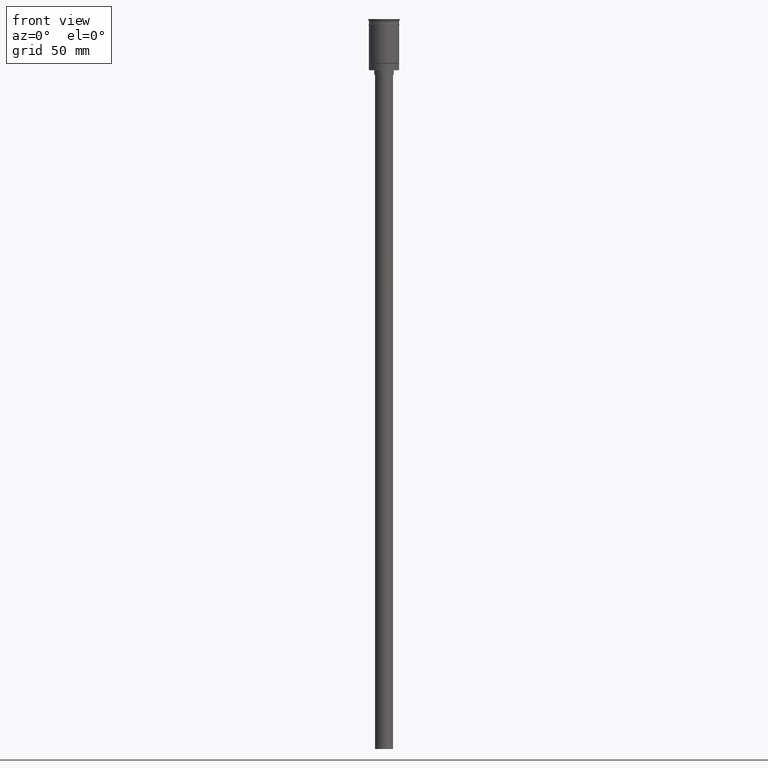
[diagram: clean part render]
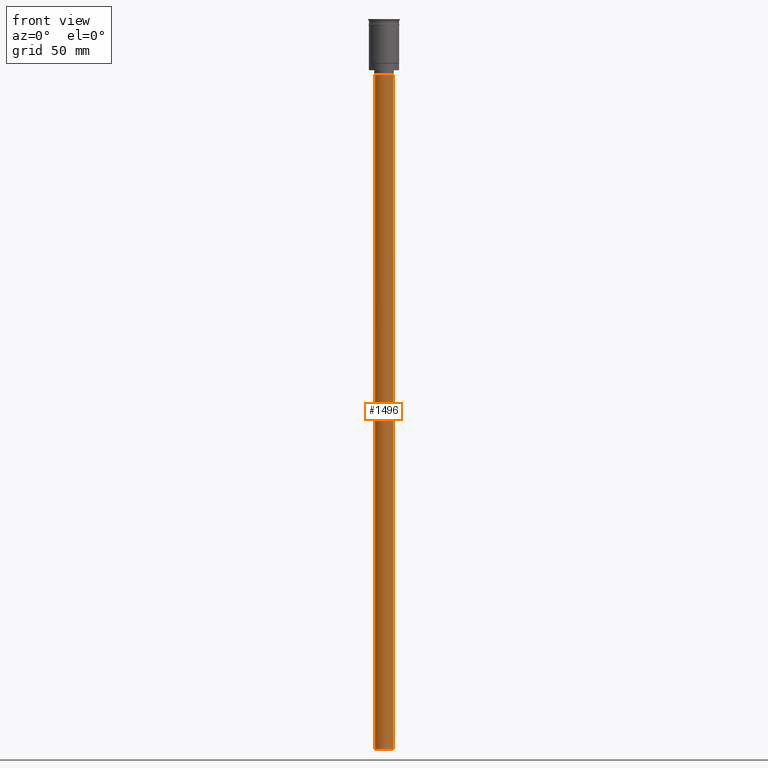
[diagram: same view with one face highlighted and labeled with its STEP entity id]
A machine part, front view. The second image highlights one B-rep face of the part: STEP entity #1496.
In plain terms, the highlighted cylindrical surface (edge-blend (fillet) strip) has radius 6 mm, axis along (-0, -0, 1).
Its self-contained STEP definition (entity closure, byte-faithful):
#3 = VECTOR ( 'NONE', #1596, 1000.000000000000000 ) ;
#108 = EDGE_CURVE ( 'NONE', #583, #896, #1266, .T. ) ;
#125 = EDGE_CURVE ( 'NONE', #834, #896, #492, .T. ) ;
#143 = ORIENTED_EDGE ( 'NONE', *, *, #881, .T. ) ;
#153 = CIRCLE ( 'NONE', #740, 6.000000000000000888 ) ;
#156 = EDGE_LOOP ( 'NONE', ( #632, #1513, #143, #874 ) ) ;
#206 = CARTESIAN_POINT ( 'NONE',  ( 6.000000000000000888, 0.000000000000000000, -484.0000000000000000 ) ) ;
#217 = DIRECTION ( 'NONE',  ( -1.000000000000000000, 0.000000000000000000, 0.000000000000000000 ) ) ;
#412 = VERTEX_POINT ( 'NONE', #638 ) ;
#417 = CARTESIAN_POINT ( 'NONE',  ( -6.000000000000000888, 7.347880794884120722E-16, -484.0000000000000000 ) ) ;
#492 = LINE ( 'NONE', #975, #3 ) ;
#583 = VERTEX_POINT ( 'NONE', #1228 ) ;
#632 = ORIENTED_EDGE ( 'NONE', *, *, #125, .F. ) ;
#638 = CARTESIAN_POINT ( 'NONE',  ( 6.000000000000000888, 0.000000000000000000, -484.0000000000000000 ) ) ;
#740 = AXIS2_PLACEMENT_3D ( 'NONE', #1042, #985, #864 ) ;
#759 = EDGE_CURVE ( 'NONE', #412, #834, #153, .T. ) ;
#784 = AXIS2_PLACEMENT_3D ( 'NONE', #1565, #1453, #217 ) ;
#834 = VERTEX_POINT ( 'NONE', #417 ) ;
#864 = DIRECTION ( 'NONE',  ( -1.000000000000000000, 0.000000000000000000, 0.000000000000000000 ) ) ;
#874 = ORIENTED_EDGE ( 'NONE', *, *, #108, .T. ) ;
#881 = EDGE_CURVE ( 'NONE', #412, #583, #920, .T. ) ;
#896 = VERTEX_POINT ( 'NONE', #1433 ) ;
#920 = LINE ( 'NONE', #206, #1218 ) ;
#975 = CARTESIAN_POINT ( 'NONE',  ( -6.000000000000000888, 7.347880794884120722E-16, -484.0000000000000000 ) ) ;
#985 = DIRECTION ( 'NONE',  ( 0.000000000000000000, 0.000000000000000000, -1.000000000000000000 ) ) ;
#1042 = CARTESIAN_POINT ( 'NONE',  ( 0.000000000000000000, 0.000000000000000000, -484.0000000000000000 ) ) ;
#1043 = DIRECTION ( 'NONE',  ( -0.000000000000000000, -0.000000000000000000, 1.000000000000000000 ) ) ;
#1057 = DIRECTION ( 'NONE',  ( 1.000000000000000000, 0.000000000000000000, 0.000000000000000000 ) ) ;
#1081 = DIRECTION ( 'NONE',  ( -0.000000000000000000, -0.000000000000000000, 1.000000000000000000 ) ) ;
#1218 = VECTOR ( 'NONE', #1081, 1000.000000000000000 ) ;
#1228 = CARTESIAN_POINT ( 'NONE',  ( 6.000000000000000888, 0.000000000000000000, -37.00000000000000000 ) ) ;
#1266 = CIRCLE ( 'NONE', #784, 6.000000000000000888 ) ;
#1280 = AXIS2_PLACEMENT_3D ( 'NONE', #1416, #1043, #1057 ) ;
#1282 = CYLINDRICAL_SURFACE ( 'NONE', #1280, 6.000000000000000888 ) ;
#1416 = CARTESIAN_POINT ( 'NONE',  ( 0.000000000000000000, 0.000000000000000000, -484.0000000000000000 ) ) ;
#1433 = CARTESIAN_POINT ( 'NONE',  ( -6.000000000000000888, 7.347880794884120722E-16, -37.00000000000000000 ) ) ;
#1453 = DIRECTION ( 'NONE',  ( 0.000000000000000000, 0.000000000000000000, -1.000000000000000000 ) ) ;
#1496 = ADVANCED_FACE ( 'NONE', ( #1558 ), #1282, .T. ) ;
#1513 = ORIENTED_EDGE ( 'NONE', *, *, #759, .F. ) ;
#1558 = FACE_OUTER_BOUND ( 'NONE', #156, .T. ) ;
#1565 = CARTESIAN_POINT ( 'NONE',  ( 0.000000000000000000, 0.000000000000000000, -37.00000000000000000 ) ) ;
#1596 = DIRECTION ( 'NONE',  ( -0.000000000000000000, -0.000000000000000000, 1.000000000000000000 ) ) ;